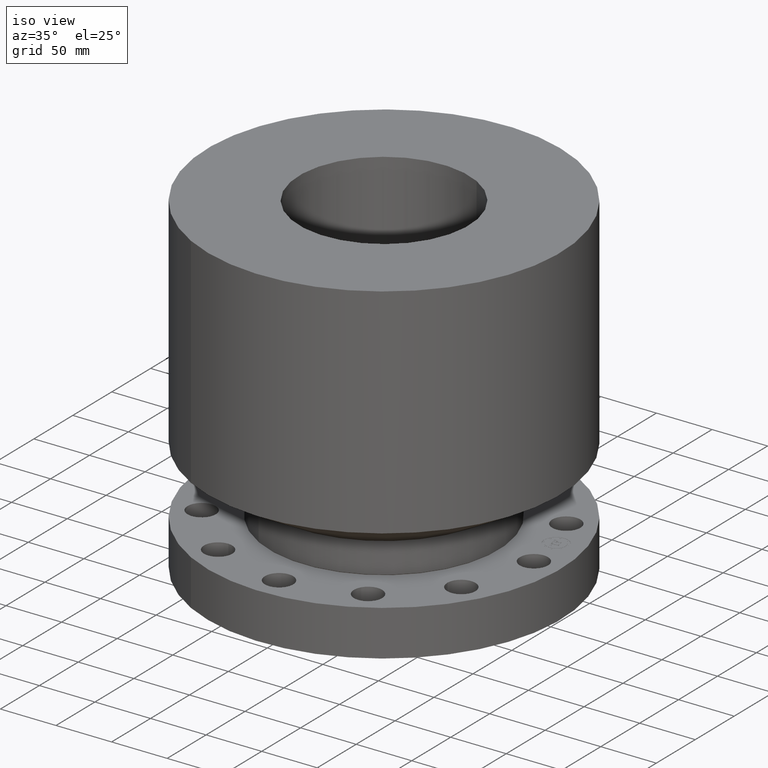
[diagram: clean part render]
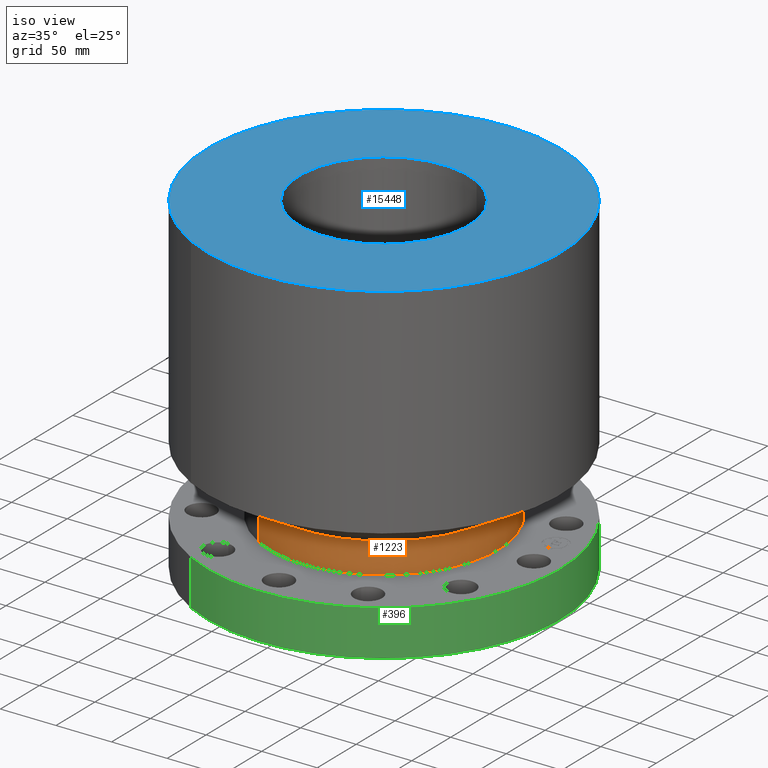
[diagram: same view with three faces highlighted in distinct colors, each labeled with its STEP entity id]
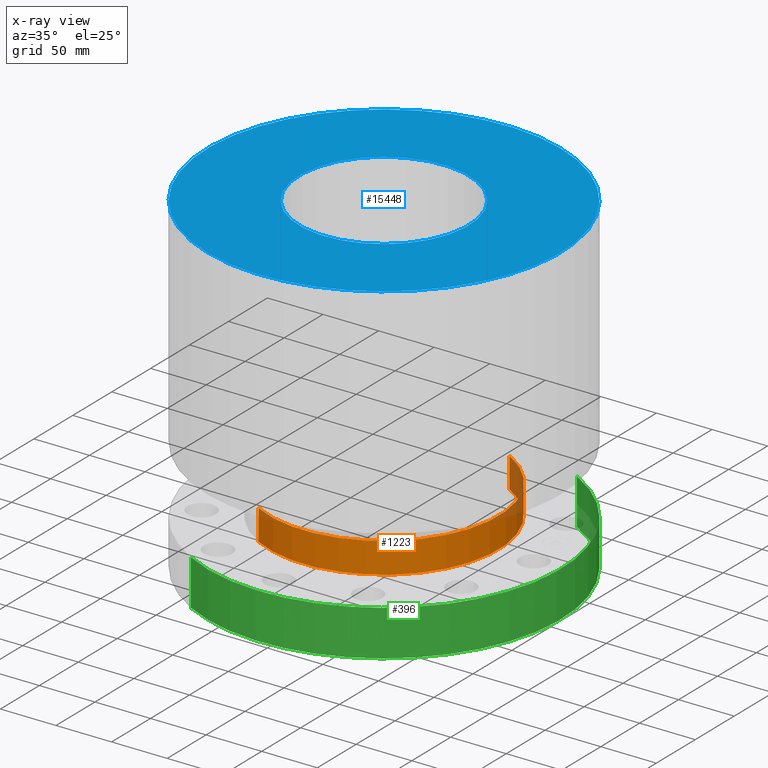
[diagram: x-ray of the same camera — body ghosted, the three highlighted faces saturated]
A machine part, iso view with three faces highlighted in distinct colors.
The next image is the same camera in x-ray (body ghosted, the three faces saturated) — at least one of them is partly hidden behind the body in this view.
Their STEP definitions:

[orange] entity #1223 — the highlighted cylindrical surface (partial cylindrical patch) has radius 103.124 mm, axis along (0, 0, -1).
#985=AXIS2_PLACEMENT_3D('Circle Axis2P3D',#983,#984,$) ;
#1196=AXIS2_PLACEMENT_3D('Cylinder Axis2P3D',#1193,#1194,#1195) ;
#1207=AXIS2_PLACEMENT_3D('Circle Axis2P3D',#1205,#1206,$) ;
#980=CARTESIAN_POINT('Vertex',(1.94646768674,3.56298520129,1.66098076212)) ;
#983=CARTESIAN_POINT('Axis2P3D Location',(0.,0.,1.66098076212)) ;
#987=CARTESIAN_POINT('Vertex',(-1.94646768674,-3.56298520129,1.66098076212)) ;
#1193=CARTESIAN_POINT('Axis2P3D Location',(0.,0.,5.75000000002)) ;
#1198=CARTESIAN_POINT('Line Origine',(1.94646768674,3.56298520129,2.20049038107)) ;
#1202=CARTESIAN_POINT('Vertex',(1.94646768674,3.56298520129,2.74000000001)) ;
#1205=CARTESIAN_POINT('Axis2P3D Location',(0.,0.,2.74000000001)) ;
#1209=CARTESIAN_POINT('Vertex',(-1.94646768674,-3.56298520129,2.74000000001)) ;
#1212=CARTESIAN_POINT('Line Origine',(-1.94646768674,-3.56298520129,2.20049038107)) ;
#984=DIRECTION('Axis2P3D Direction',(-0.,0.,0.0393700787402)) ;
#1194=DIRECTION('Axis2P3D Direction',(0.,0.,-0.0393700787402)) ;
#1195=DIRECTION('Axis2P3D XDirection',(-0.0188750212049,-0.0345504945626,0.)) ;
#1199=DIRECTION('Vector Direction',(0.,0.,-0.0393700787402)) ;
#1206=DIRECTION('Axis2P3D Direction',(0.,0.,-0.0393700787402)) ;
#1213=DIRECTION('Vector Direction',(0.,0.,-0.0393700787402)) ;
#1200=VECTOR('Line Direction',#1199,0.0393700787402) ;
#1214=VECTOR('Line Direction',#1213,0.0393700787402) ;
#1218=ORIENTED_EDGE('',*,*,#989,.F.) ;
#1219=ORIENTED_EDGE('',*,*,#1204,.T.) ;
#1220=ORIENTED_EDGE('',*,*,#1211,.T.) ;
#1221=ORIENTED_EDGE('',*,*,#1216,.F.) ;
#1223=ADVANCED_FACE('PartBody',(#1222),#1197,.T.) ;
#986=CIRCLE('generated circle',#985,4.06000000002) ;
#1208=CIRCLE('generated circle',#1207,4.06000000002) ;
#1197=CYLINDRICAL_SURFACE('generated cylinder',#1196,4.06000000002) ;
#989=EDGE_CURVE('',#981,#988,#986,.F.) ;
#1204=EDGE_CURVE('',#981,#1203,#1201,.F.) ;
#1211=EDGE_CURVE('',#1203,#1210,#1208,.T.) ;
#1216=EDGE_CURVE('',#988,#1210,#1215,.F.) ;
#1217=EDGE_LOOP('',(#1218,#1219,#1220,#1221)) ;
#1222=FACE_OUTER_BOUND('',#1217,.T.) ;
#1201=LINE('Line',#1198,#1200) ;
#1215=LINE('Line',#1212,#1214) ;
#981=VERTEX_POINT('',#980) ;
#988=VERTEX_POINT('',#987) ;
#1203=VERTEX_POINT('',#1202) ;
#1210=VERTEX_POINT('',#1209) ;

[blue] entity #15448 — the highlighted planar face has unit normal (0, 0, -1).
#4644=AXIS2_PLACEMENT_3D('Circle Axis2P3D',#4642,#4643,$) ;
#4663=AXIS2_PLACEMENT_3D('Circle Axis2P3D',#4661,#4662,$) ;
#15424=AXIS2_PLACEMENT_3D('Plane Axis2P3D',#15421,#15422,#15423) ;
#15432=AXIS2_PLACEMENT_3D('Circle Axis2P3D',#15430,#15431,$) ;
#15441=AXIS2_PLACEMENT_3D('Circle Axis2P3D',#15439,#15440,$) ;
#4639=CARTESIAN_POINT('Vertex',(2.99640961629,5.48489101184,11.75)) ;
#4642=CARTESIAN_POINT('Axis2P3D Location',(0.,0.,11.75)) ;
#4646=CARTESIAN_POINT('Vertex',(-2.99640961629,-5.48489101184,11.75)) ;
#4661=CARTESIAN_POINT('Axis2P3D Location',(0.,0.,11.75)) ;
#15421=CARTESIAN_POINT('Axis2P3D Location',(0.,6.25000000003,11.75)) ;
#15430=CARTESIAN_POINT('Axis2P3D Location',(0.,0.,11.75)) ;
#15434=CARTESIAN_POINT('Vertex',(-1.43827661582,-2.63274768568,11.75)) ;
#15436=CARTESIAN_POINT('Vertex',(1.43827661582,2.63274768568,11.75)) ;
#15439=CARTESIAN_POINT('Axis2P3D Location',(0.,0.,11.75)) ;
#4643=DIRECTION('Axis2P3D Direction',(0.,0.,-0.0393700787402)) ;
#4662=DIRECTION('Axis2P3D Direction',(0.,0.,-0.0393700787402)) ;
#15422=DIRECTION('Axis2P3D Direction',(0.,0.,-0.0393700787402)) ;
#15423=DIRECTION('Axis2P3D XDirection',(0.0393700787402,0.,0.)) ;
#15431=DIRECTION('Axis2P3D Direction',(0.,0.,-0.0393700787402)) ;
#15440=DIRECTION('Axis2P3D Direction',(0.,0.,-0.0393700787402)) ;
#15427=ORIENTED_EDGE('',*,*,#4648,.F.) ;
#15428=ORIENTED_EDGE('',*,*,#4665,.F.) ;
#15445=ORIENTED_EDGE('',*,*,#15438,.T.) ;
#15446=ORIENTED_EDGE('',*,*,#15443,.T.) ;
#15447=FACE_BOUND('',#15444,.T.) ;
#15448=ADVANCED_FACE('PartBody',(#15429,#15447),#15425,.F.) ;
#4645=CIRCLE('generated circle',#4644,6.25000000003) ;
#4664=CIRCLE('generated circle',#4663,6.25000000003) ;
#15433=CIRCLE('generated circle',#15432,3.00000000001) ;
#15442=CIRCLE('generated circle',#15441,3.00000000001) ;
#4648=EDGE_CURVE('',#4640,#4647,#4645,.T.) ;
#4665=EDGE_CURVE('',#4647,#4640,#4664,.T.) ;
#15438=EDGE_CURVE('',#15435,#15437,#15433,.T.) ;
#15443=EDGE_CURVE('',#15437,#15435,#15442,.T.) ;
#15426=EDGE_LOOP('',(#15427,#15428)) ;
#15444=EDGE_LOOP('',(#15445,#15446)) ;
#15429=FACE_OUTER_BOUND('',#15426,.T.) ;
#15425=PLANE('',#15424) ;
#4640=VERTEX_POINT('',#4639) ;
#4647=VERTEX_POINT('',#4646) ;
#15435=VERTEX_POINT('',#15434) ;
#15437=VERTEX_POINT('',#15436) ;

[green] entity #396 — the highlighted cylindrical surface (partial cylindrical patch) has radius 158.75 mm, axis along (0, 0, -1).
#82=AXIS2_PLACEMENT_3D('Circle Axis2P3D',#80,#81,$) ;
#357=AXIS2_PLACEMENT_3D('Cylinder Axis2P3D',#354,#355,#356) ;
#387=AXIS2_PLACEMENT_3D('Circle Axis2P3D',#385,#386,$) ;
#80=CARTESIAN_POINT('Axis2P3D Location',(0.,0.,1.62000000001)) ;
#84=CARTESIAN_POINT('Vertex',(2.99640961629,5.48489101184,1.62000000001)) ;
#86=CARTESIAN_POINT('Vertex',(-2.99640961629,-5.48489101184,1.62000000001)) ;
#354=CARTESIAN_POINT('Axis2P3D Location',(0.,0.,5.75000000002)) ;
#363=CARTESIAN_POINT('Vertex',(-2.99640961629,-5.48489101184,1.1189649382E-015)) ;
#365=CARTESIAN_POINT('Vertex',(2.99640961629,5.48489101184,1.1189649382E-015)) ;
#368=CARTESIAN_POINT('Line Origine',(-2.99640961629,-5.48489101184,7.87719854479)) ;
#373=CARTESIAN_POINT('Line Origine',(2.99640961629,5.48489101184,7.87719854479)) ;
#385=CARTESIAN_POINT('Axis2P3D Location',(0.,0.,1.1189649382E-015)) ;
#81=DIRECTION('Axis2P3D Direction',(0.,0.,-0.0393700787402)) ;
#355=DIRECTION('Axis2P3D Direction',(0.,0.,-0.0393700787402)) ;
#356=DIRECTION('Axis2P3D XDirection',(-0.0188750212049,-0.0345504945626,0.)) ;
#369=DIRECTION('Vector Direction',(0.,0.,-0.0393700787402)) ;
#374=DIRECTION('Vector Direction',(0.,0.,-0.0393700787402)) ;
#386=DIRECTION('Axis2P3D Direction',(0.,0.,-0.0393700787402)) ;
#370=VECTOR('Line Direction',#369,0.0393700787402) ;
#375=VECTOR('Line Direction',#374,0.0393700787402) ;
#391=ORIENTED_EDGE('',*,*,#389,.F.) ;
#392=ORIENTED_EDGE('',*,*,#377,.T.) ;
#393=ORIENTED_EDGE('',*,*,#88,.T.) ;
#394=ORIENTED_EDGE('',*,*,#372,.F.) ;
#396=ADVANCED_FACE('PartBody',(#395),#358,.T.) ;
#83=CIRCLE('generated circle',#82,6.25000000002) ;
#388=CIRCLE('generated circle',#387,6.25000000003) ;
#358=CYLINDRICAL_SURFACE('generated cylinder',#357,6.25000000003) ;
#88=EDGE_CURVE('',#85,#87,#83,.T.) ;
#372=EDGE_CURVE('',#364,#87,#371,.F.) ;
#377=EDGE_CURVE('',#366,#85,#376,.F.) ;
#389=EDGE_CURVE('',#366,#364,#388,.T.) ;
#390=EDGE_LOOP('',(#391,#392,#393,#394)) ;
#395=FACE_OUTER_BOUND('',#390,.T.) ;
#371=LINE('Line',#368,#370) ;
#376=LINE('Line',#373,#375) ;
#85=VERTEX_POINT('',#84) ;
#87=VERTEX_POINT('',#86) ;
#364=VERTEX_POINT('',#363) ;
#366=VERTEX_POINT('',#365) ;